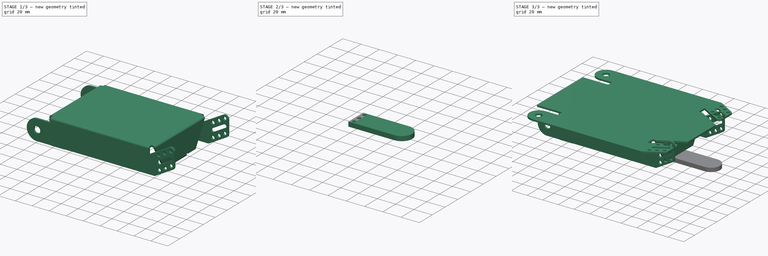
[diagram: build sequence overview — one tinted view per stage of 3, left to right]
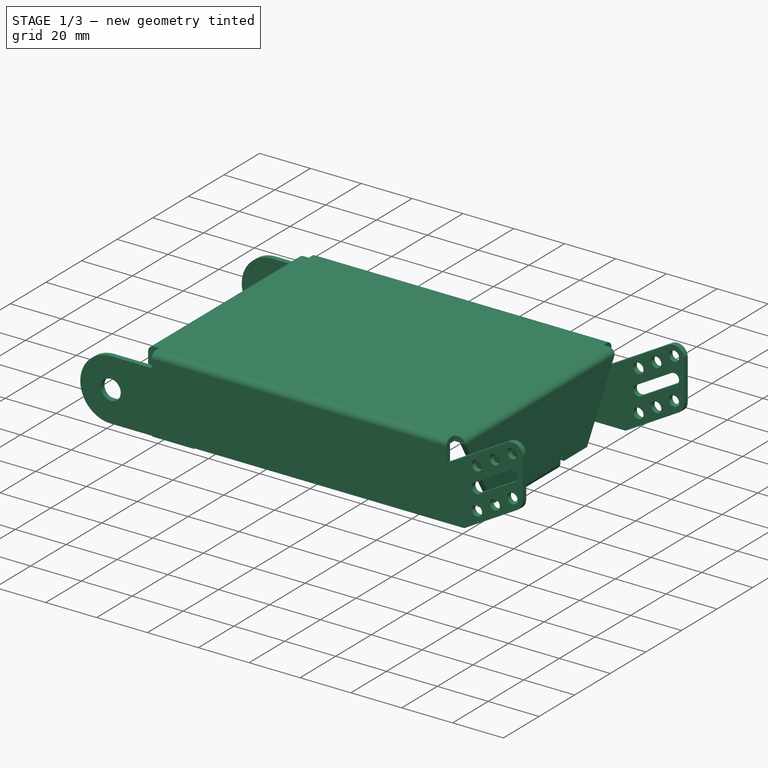
[diagram: stage 1 of 3 — iso view after this stage's code; geometry added in this stage tinted green]
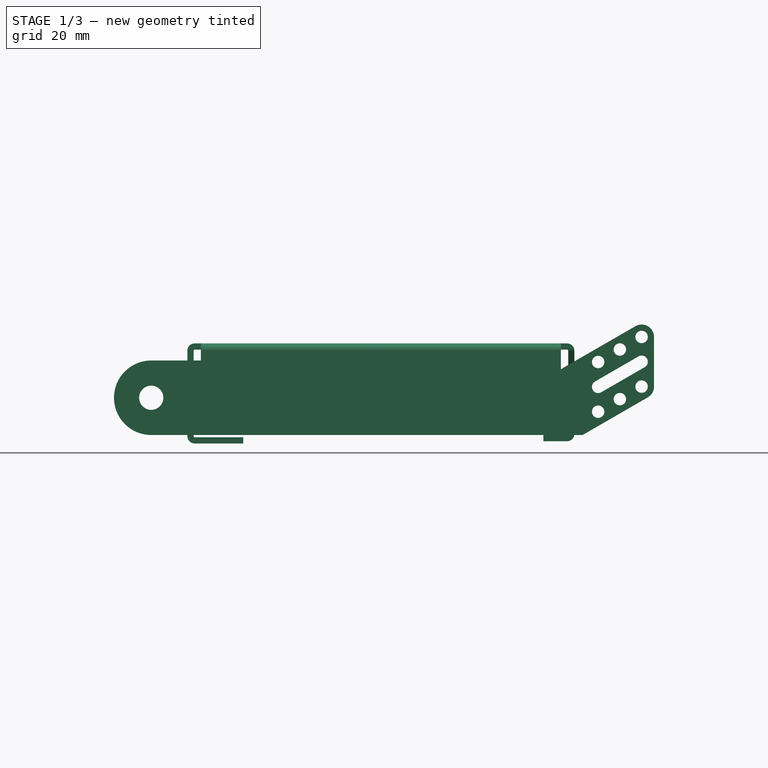
[diagram: stage 1 of 3 — front view after this stage's code; geometry added in this stage tinted green]
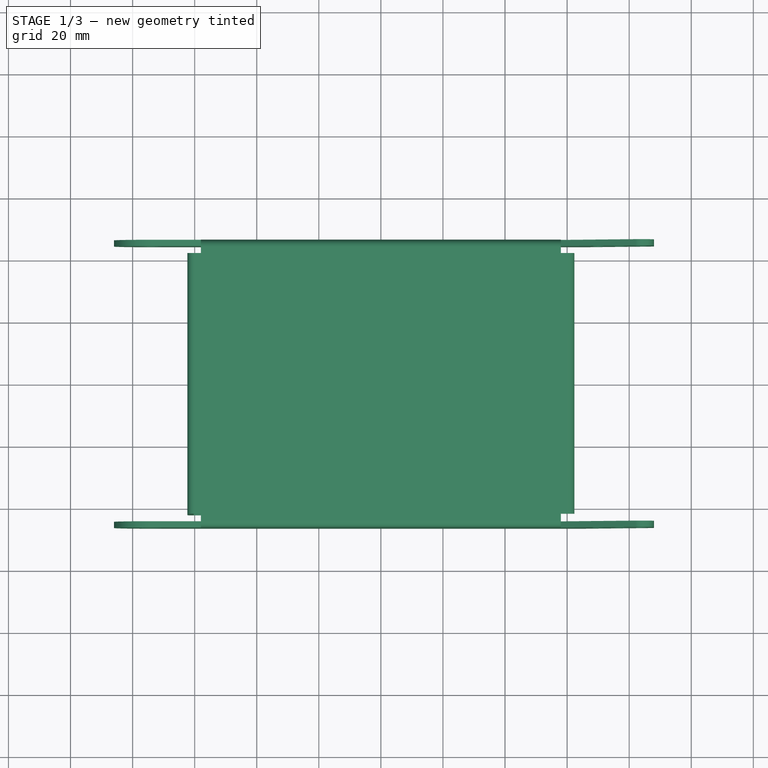
[diagram: stage 1 of 3 — top view after this stage's code; geometry added in this stage tinted green]
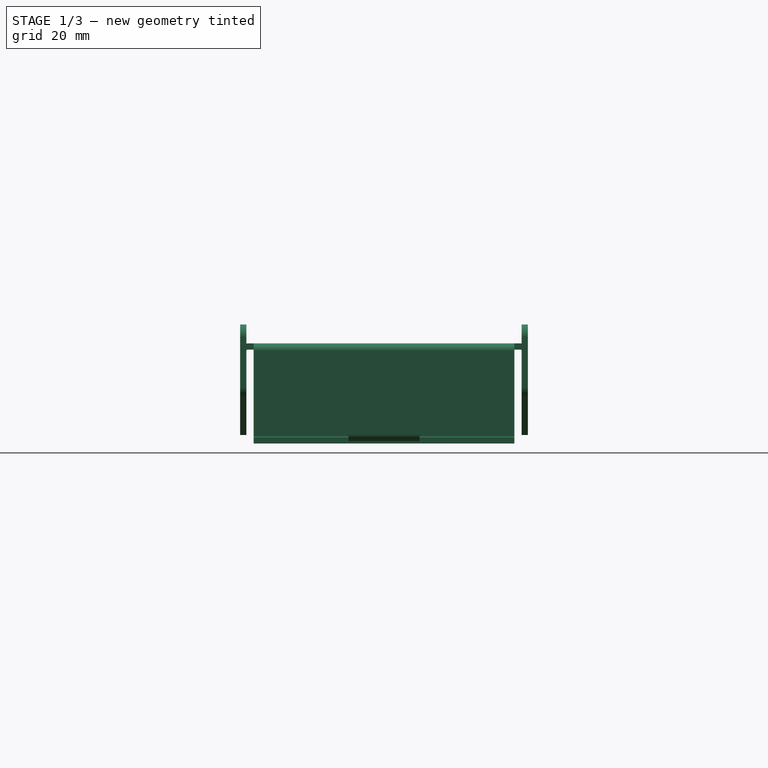
[diagram: stage 1 of 3 — right view after this stage's code; geometry added in this stage tinted green]
FCSTD DOCUMENT  (FreeCAD 0.21R33771 (Git))
Label: chasis_mBot-2_gael
License: Creative Commons Attribution-NonCommercial-ShareAlike 4.0
LicenseURL: https://creativecommons.org/licenses/by-nc-sa/4.0/
objects: Sketcher::SketchObject×10, PartDesign::FeaturePython×6, PartDesign::Pad×3, PartDesign::Body×2, PartDesign::Pocket×1, PartDesign::Plane×1
note: 27 computed .brp shape members not serialized (recipe doc carries the construction recipe); baked Part::Feature solids carry a one-line shape summary decoded from their .brp

FEATURE [Sketcher::SketchObject] Sketch003  label="Sketch-bend-left-side"
  ExternalGeometry = -> [Fold001]
  FullyConstrained = false
  MapMode = 5
  Support = -> [XY_Plane]
  sketch-geometry (1):
    g0: LineSegment StartX=-58.7819 StartY=44 StartZ=0 EndX=59.026 EndY=44 EndZ=0
  constraints (2):
    c: Horizontal(g0)
    c: DistanceY(g0,g-3) = 2
FEATURE [PartDesign::FeaturePython] Fold002  label="Unnamed003"  # WARN: FeaturePython — macro-defined, semantics opaque (R4)
FEATURE [Sketcher::SketchObject] Sketch004  label="Unnamed004"
  FullyConstrained = true
FEATURE [PartDesign::FeaturePython] Fold003  label="Fold-left-side"  # WARN: FeaturePython — macro-defined, semantics opaque (R4)
  BaseFeature = -> Fold002
  BendLine = -> Sketch004
  Position = 0
  angle = 90
  baseObject = -> Fold002 [Face2]
  invert = false
  invertbend = false
  kfactor = 0.5
  radius = 0.35
  unfold = false
FEATURE [PartDesign::FeaturePython] Bend  label="Bend-line-sensors-support"  # WARN: FeaturePython — macro-defined, semantics opaque (R4)
  AutoMiter = true
  BaseFeature = -> Fold003
  BendType = 2
  LengthList = [15.65]
  LengthSpec = 0
  ReliefFactor = 0.7
  UseReliefFactor = false
  angle = -90
  baseObject = -> Fold003 [Face79]
  bendAList = [-90]
  extend1 = 0
  extend2 = 0
  gap1 = 0
  gap2 = 0
  invert = false
  kfactor = 0.5
  length = 15.65
  maxExtendDist = 5
  minGap = 0.2
  minReliefGap = 1
  miterangle1 = 0
  miterangle2 = 0
  offset = 0
  radius = 0.35
  reliefType = 0
  reliefd = 1
  reliefw = 0.8
  sketchflip = false
  sketchinvert = false
  unfold = false
FEATURE [PartDesign::FeaturePython] Bend001  label="Bend-tail-bottom-support"  # WARN: FeaturePython — macro-defined, semantics opaque (R4)
  AutoMiter = true
  BaseFeature = -> Bend
  BendType = 1
  LengthList = [7.65]
  LengthSpec = 0
  ReliefFactor = 0.7
  UseReliefFactor = false
  angle = -90
  baseObject = -> Bend [Face93]
  bendAList = [-90]
  extend1 = 0
  extend2 = 0
  gap1 = 15
  gap2 = 15
  invert = false
  kfactor = 0.5
  length = 7.65
  maxExtendDist = 5
  minGap = 0.2
  minReliefGap = 1
  miterangle1 = 0
  miterangle2 = 0
  offset = 0
  radius = 0.35
  reliefType = 1
  reliefd = 2.5
  reliefw = 2
  sketchflip = false
  sketchinvert = false
  unfold = false
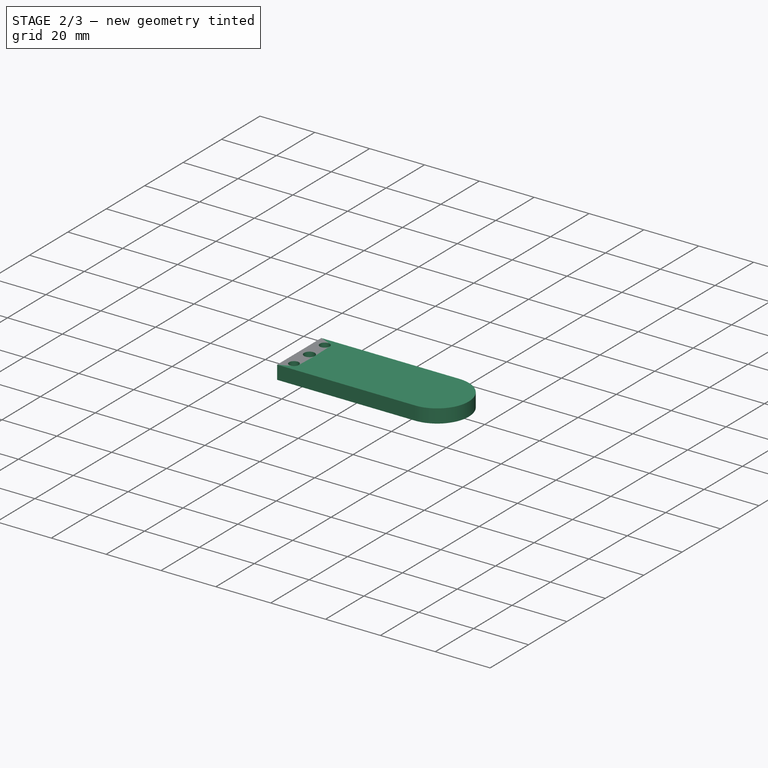
[diagram: stage 2 of 3 — iso view after this stage's code; geometry added in this stage tinted green]
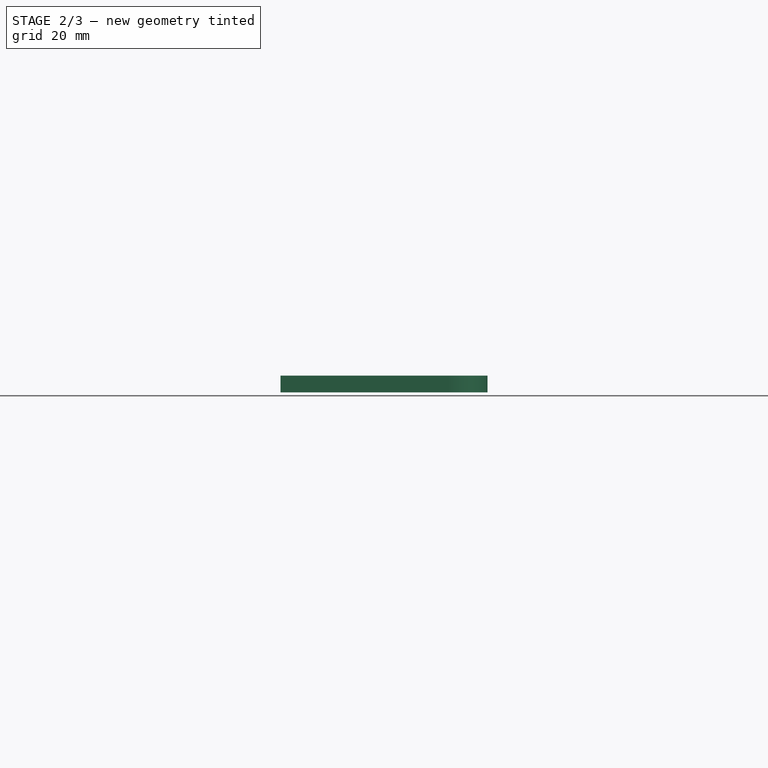
[diagram: stage 2 of 3 — front view after this stage's code; geometry added in this stage tinted green]
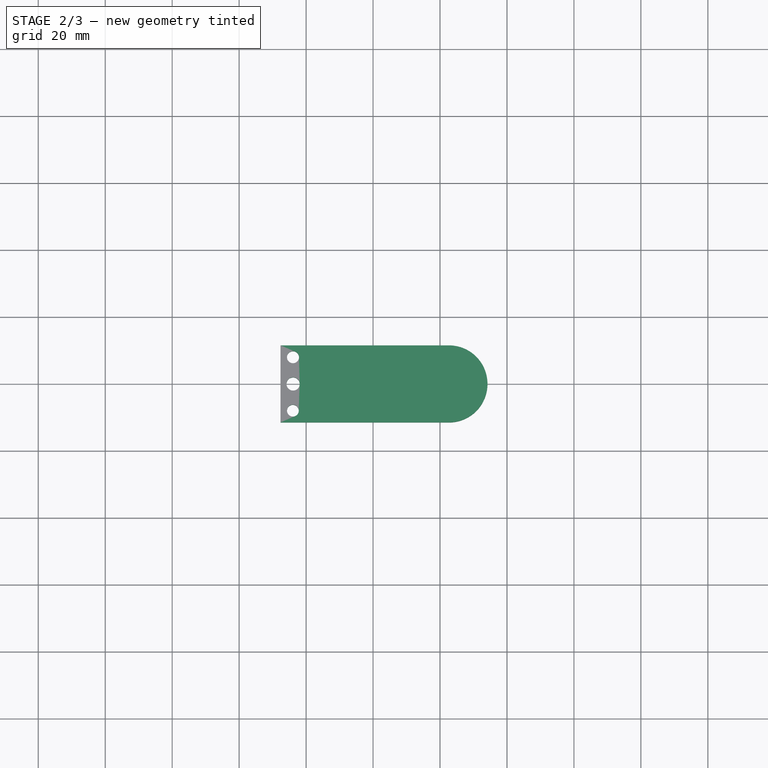
[diagram: stage 2 of 3 — top view after this stage's code; geometry added in this stage tinted green]
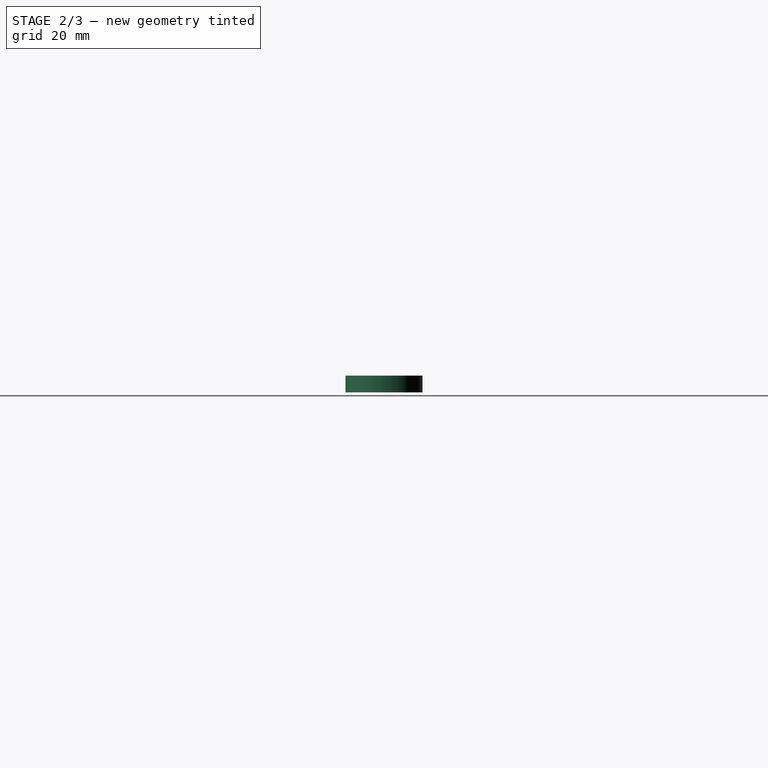
[diagram: stage 2 of 3 — right view after this stage's code; geometry added in this stage tinted green]
FEATURE [Sketcher::SketchObject] Sketch009  label="Unnamed008"
  FullyConstrained = true
FEATURE [PartDesign::Pocket] Pocket  label="Pocket-bottom-screw-holes"
  AllowMultiFace = false
  BaseFeature = -> Bend001
  Direction = (1,1,1)
  Length = 5
  Length2 = 5
  Profile = -> Sketch009
  Type = 0
FEATURE [PartDesign::Body] Body
  Group = -> [Sketch,Pad,Sketch001,Fold,Sketch002,Fold001,Sketch003,Fold002,Sketch004,Fold003,Bend,Bend001,Sketch009,Pocket,Sketch010,Sketch011,Pad001]
  Origin = -> Origin
  Tip = -> Pad001
FEATURE [PartDesign::Plane] DatumPlane
  Length = 155.858
  MapMode = 5
  Placement = pos=(0,0,-29.5044) rot=(1,0,0;3.14159rad)
  ResizeMode = 0
  Support = -> [Pocket]
  Width = 66.6838
FEATURE [Sketcher::SketchObject] Sketch012
  FullyConstrained = false
  MapMode = 5
  Placement = pos=(0,0,-29.5044) rot=(1,0,0;3.14159rad)
  Support = -> [DatumPlane]
  sketch-geometry (7):
    g0: LineSegment StartX=52.3573 StartY=11.4679 StartZ=0 EndX=102.675 EndY=11.4679 EndZ=0
    g1: LineSegment StartX=102.675 StartY=-11.5321 StartZ=0 EndX=52.3573 EndY=-11.5321 EndZ=0
    g2: LineSegment StartX=52.3573 StartY=-11.5321 StartZ=0 EndX=52.3573 EndY=11.4679 EndZ=0
    g3: ArcOfCircle CenterX=102.675 CenterY=-0.032081 CenterZ=0 NormalX=0 NormalY=0 NormalZ=1 AngleXU=0 Radius=11.5 StartAngle=4.71239 EndAngle=7.85398
    g4: Circle CenterX=56.0549 CenterY=7.96632 CenterZ=0 NormalX=0 NormalY=0 NormalZ=1 AngleXU=0 Radius=1.75972
    g5: Circle CenterX=56.1118 CenterY=0 CenterZ=0 NormalX=0 NormalY=0 NormalZ=1 AngleXU=0 Radius=1.9716
    g6: Circle CenterX=56.0833 CenterY=-8.00155 CenterZ=0 NormalX=0 NormalY=0 NormalZ=1 AngleXU=0 Radius=1.7972
  constraints (9):
    c: Coincident(g1,g2)
    c: Coincident(g2,g0)
    c: DistanceY(g2,g2) = 23
    c: Coincident(g1,g3)
    c: Coincident(g3,g0)
    c: Horizontal(g0)
    c: Horizontal(g1)
    c: Radius(g3) = 11.5
    c: PointOnObject(g5,g-1)
FEATURE [PartDesign::Pad] Pad002
  AllowMultiFace = false
  Direction = (0,0,-1)
  Length = 5
  Length2 = 100
  Placement = pos=(0,0,-29.5044) rot=(1,0,0;3.14159rad)
  Profile = -> Sketch012
  Type = 0
FEATURE [PartDesign::Body] Body001
  Group = -> [DatumPlane,Sketch012,Pad002]
  Origin = -> Origin001
  Tip = -> Pad002
FEATURE [Sketcher::SketchObject] Sketch013  label="Sketch-space-limit"
  ExternalGeometry = -> [Pocket]
  FullyConstrained = false
  MapMode = 5
  Placement = pos=(0,0,0) rot=(1,0,0;1.5708rad)
  Support = -> [XZ_Plane]
  sketch-geometry (4):
    g0: LineSegment StartX=114 StartY=15.8437 StartZ=0 EndX=52.35 EndY=15.8437 EndZ=0
    g1: LineSegment StartX=52.35 StartY=15.8437 StartZ=0 EndX=52.35 EndY=-34.3737 EndZ=0
    g2: LineSegment StartX=52.35 StartY=-34.3737 StartZ=0 EndX=114 EndY=-34.3737 EndZ=0
    g3: LineSegment StartX=114 StartY=-34.3737 StartZ=0 EndX=114 EndY=15.8437 EndZ=0
  constraints (10):
    c: Coincident(g0,g1)
    c: Coincident(g1,g2)
    c: Coincident(g2,g3)
    c: Coincident(g3,g0)
    c: Horizontal(g0)
    c: Horizontal(g2)
    c: Vertical(g1)
    c: Vertical(g3)
    c: DistanceX(g-3,g0) = 26
    c: PointOnObject(g-4,g1)
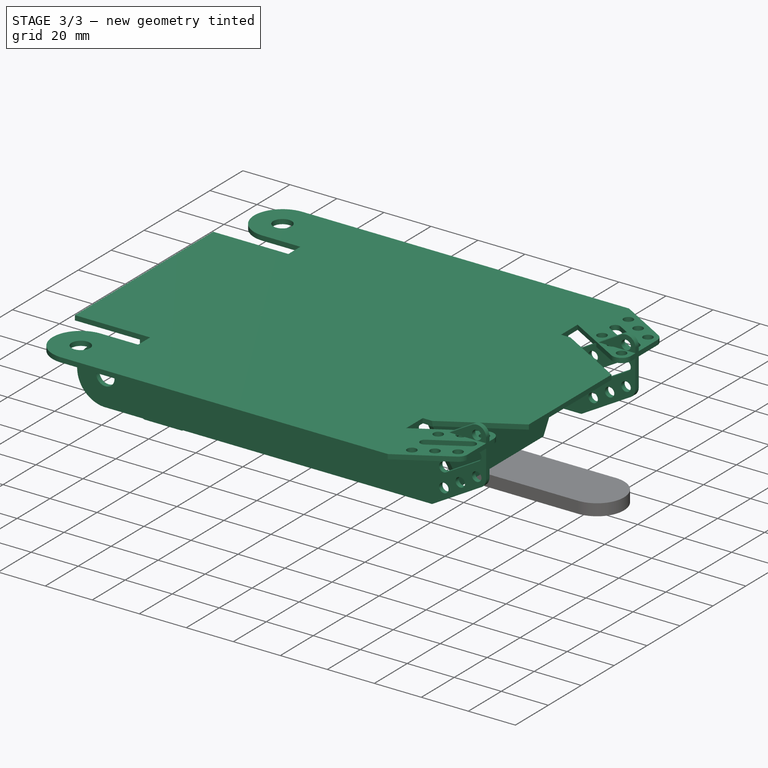
[diagram: stage 3 of 3 — iso view after this stage's code; geometry added in this stage tinted green]
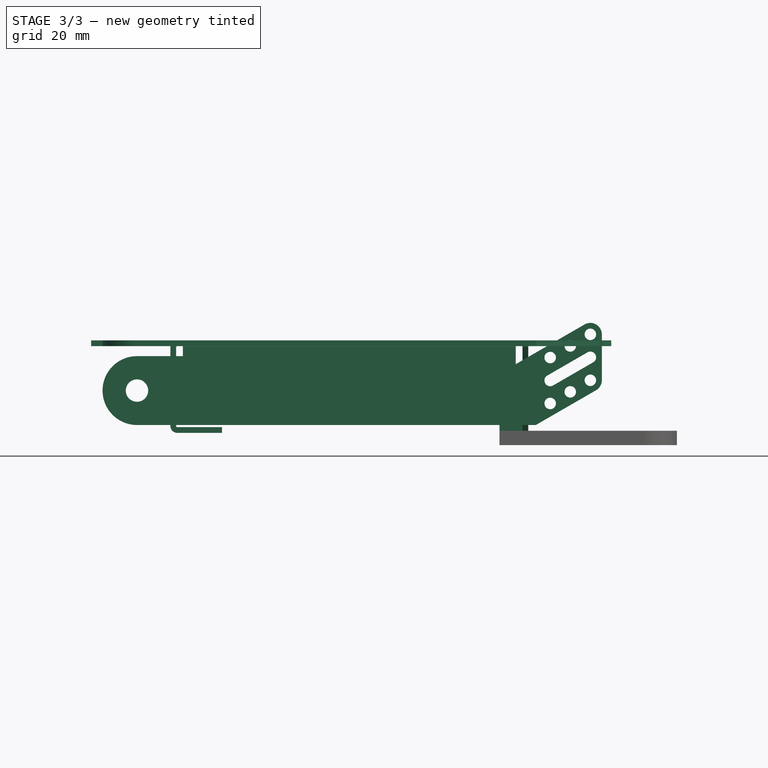
[diagram: stage 3 of 3 — front view after this stage's code; geometry added in this stage tinted green]
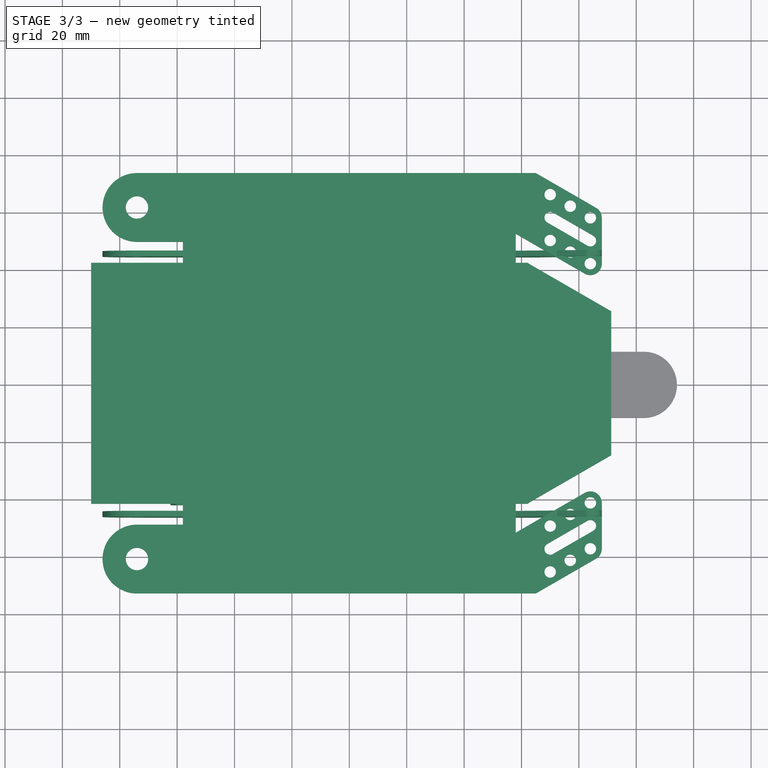
[diagram: stage 3 of 3 — top view after this stage's code; geometry added in this stage tinted green]
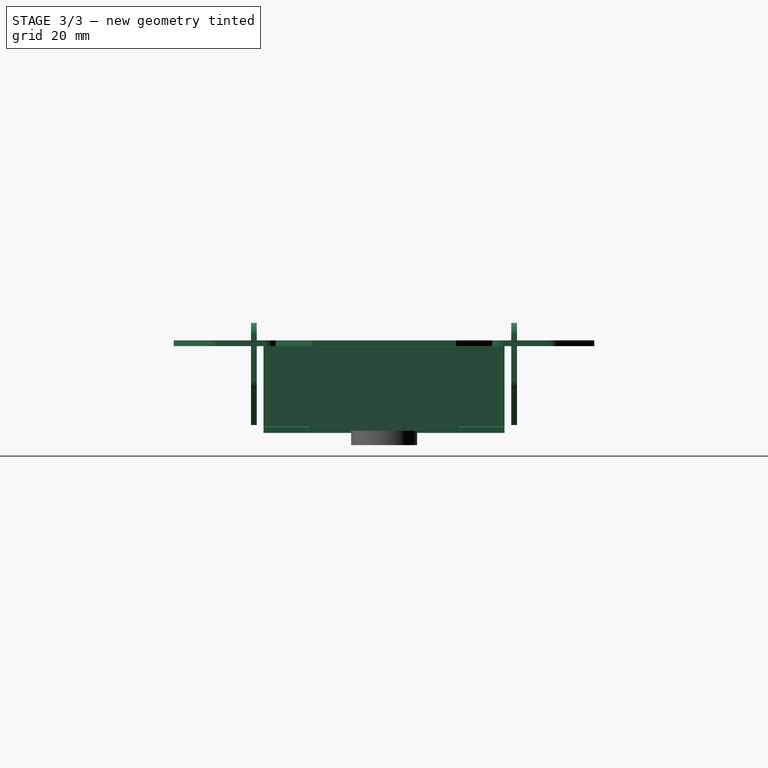
[diagram: stage 3 of 3 — right view after this stage's code; geometry added in this stage tinted green]
FEATURE [Sketcher::SketchObject] Sketch  label="Sketch-chasis-base"
  FullyConstrained = false
  MapMode = 5
  Support = -> [XY_Plane]
  constraints (190):
    c: Coincident(g0,g1)
    c: Coincident(g1,g2)
    c: Coincident(g2,g3)
    c: Coincident(g3,g0)
    c: Horizontal(g0)
    c: Horizontal(g2)
    c: Vertical(g1)
    c: Vertical(g3)
    c: Symmetric(g0,g1,g-1)
    c: DistanceY(g3,g3) = 84
    c: DistanceX(g0,g0) = 116
    c: Coincident(g1,g4)
    c: Horizontal(g4)
    c: Coincident(g4,g5)
    c: Coincident(g5,g6)
    c: Coincident(g6,g7)
    c: Coincident(g7,g8)
    c: Coincident(g8,g0)
    c: Horizontal(g8)
    c: Coincident(g9,g10)
    c: Horizontal(g10)
    c: Tangent(g10,g11) = -1.5708
    c: Tangent(g11,g12) = -1.5708
    c: Coincident(g12,g13)
    c: Coincident(g13,g0)
    c: Vertical(g13)
    c: Horizontal(g12)
    c: Angle(g1,g7) = 1.0472
    c: Angle(g5,g1) = 1.0472
    c: Symmetric(g6,g5,g-1)
    c: Coincident(g9,g8)
    c: Vertical(g9)
    c: Coincident(g13,g14)
    c: Horizontal(g14)
    c: Coincident(g14,g15)
    c: Vertical(g15)
    c: Coincident(g15,g16)
    c: Coincident(g16,g2)
    c: Horizontal(g16)
    c: Horizontal(g17)
    c: Tangent(g17,g18) = 1.5708
    c: Tangent(g18,g19) = 1.5708
    c: Horizontal(g19)
    c: Coincident(g20,g19)
    c: Coincident(g20,g16)
    c: Vertical(g20)
    c: Coincident(g21,g17)
    c: Coincident(g21,g4)
    c: Vertical(g21)
    c: DistanceX(g8,g8) = 4
    c: Equal(g18,g11)
    c: Equal(g13,g20)
    c: DistanceY(g13,g13) = 7.27
    c: DistanceX(g16,g16) = 32
    c: Radius(g18) = 12
    c: DistanceX(g19,g19) = 16
    c: Coincident(g22,g18)
    c: Radius(g22) = 3.9
    c: Equal(g12,g19)
    c: Coincident(g23,g11)
    c: Equal(g23,g22)
    c: DistanceX(g4,g5) = 33.275
    c: Coincident(g4,g24)
    c: PointOnObject(g24,g21)
    c: Coincident(g24,g25)
    c: Vertical(g26)
    c: Coincident(g27,g28)
    c: Coincident(g28,g17)
    c: Horizontal(g28)
    c: Tangent(g25,g29) = 1.5708
    c: Tangent(g26,g29) = 1.5708
    c: Tangent(g26,g30) = 1.5708
    c: Tangent(g27,g30) = 1.5708
    c: Parallel(g25,g27)
    c: Parallel(g27,g5)
    c: Equal(g29,g30)
    c: Radius(g29) = 4
    c: DistanceX(g17,g26) = 30
    c: DistanceX(g28,g28) = 7
    c: Coincident(g31,g29)
    c: Coincident(g32,g30)
    c: Parallel(g32,g31)
    c: Parallel(g31,g25)
    c: Coincident(g33,g29)
    c: Coincident(g34,g30)
    c: PointOnObject(g36,g32)
    c: PointOnObject(g37,g31)
    c: Coincident(g38,g31)
    c: Tangent(g39,g41) = -1.5708
    c: Tangent(g41,g40) = -1.5708
    c: Tangent(g40,g42) = -1.5708
    c: Tangent(g42,g39) = -1.5708
    c: Equal(g39,g40)
    c: Equal(g38,g40)
    c: Equal(g40,g35)
    c: Equal(g35,g36)
    c: Equal(g36,g34)
    c: Equal(g34,g37)
    c: Equal(g37,g33)
    c: Radius(g38) = 2
    c: Coincident(g43,g29)
    c: Coincident(g43,g39)
    c: Coincident(g44,g39)
    c: Coincident(g44,g30)
    c: Vertical(g43)
    c: Coincident(g45,g38)
    c: Coincident(g45,g40)
    c: Vertical(g45)
    c: Coincident(g46,g40)
    c: Coincident(g46,g35)
    c: Vertical(g46)
    c: Equal(g45,g43)
    c: Equal(g43,g44)
    c: Coincident(g32,g35)
    c: DistanceY(g35,g38) = 16
    c: DistanceX(g35,g30) = 14
    c: Coincident(g47,g37)
    c: Coincident(g47,g36)
    c: Vertical(g47)
    c: Coincident(g48,g38)
    c: PointOnObject(g48,g47)
    c: Horizontal(g48)
    c: Coincident(g49,g37)
    c: PointOnObject(g49,g43)
    c: Horizontal(g49)
    c: Equal(g48,g49)
    c: Coincident(g50,g51)
    c: Vertical(g52)
    c: Coincident(g53,g54)
    c: Horizontal(g54)
    c: Tangent(g51,g55) = -1.5708
    c: Tangent(g52,g55) = -1.5708
    c: Tangent(g52,g56) = -1.5708
    c: Tangent(g53,g56) = -1.5708
    c: Parallel(g51,g53)
    c: Equal(g55,g56)
    c: Radius(g55) = 4
    c: Coincident(g57,g55)
    c: Coincident(g58,g56)
    c: Parallel(g58,g57)
    c: Parallel(g57,g51)
    c: Coincident(g59,g55)
    c: Coincident(g60,g56)
    c: PointOnObject(g62,g58)
    c: PointOnObject(g63,g57)
    c: Coincident(g64,g57)
    c: Tangent(g65,g67) = 1.5708
    c: Tangent(g67,g66) = 1.5708
    c: Tangent(g66,g68) = 1.5708
    c: Tangent(g68,g65) = 1.5708
    c: Equal(g65,g66)
    c: Equal(g64,g66)
    c: Equal(g66,g61)
    c: Equal(g61,g62)
    c: Equal(g62,g60)
    c: Equal(g60,g63)
    c: Equal(g63,g59)
    c: Radius(g64) = 2
    c: Coincident(g69,g55)
    c: Coincident(g69,g65)
    c: Coincident(g70,g65)
    c: Coincident(g70,g56)
    c: Vertical(g69)
    c: Coincident(g71,g64)
    c: Coincident(g71,g66)
    c: Vertical(g71)
    c: Coincident(g72,g66)
    c: Coincident(g72,g61)
    c: Vertical(g72)
    c: Equal(g71,g69)
    c: Equal(g69,g70)
    c: Coincident(g58,g61)
    c: Coincident(g73,g63)
    c: Coincident(g73,g62)
    c: Vertical(g73)
    c: Coincident(g74,g64)
    c: PointOnObject(g74,g73)
    c: Horizontal(g74)
    c: Coincident(g75,g63)
    c: PointOnObject(g75,g69)
    c: Horizontal(g75)
    c: Equal(g74,g75)
    c: Coincident(g50,g8)
    c: Vertical(g50)
    c: Parallel(g51,g7)
    c: Coincident(g54,g10)
    c: DistanceX(g54,g54) = 7
    c: DistanceX(g61,g56) = 14
    c: DistanceY(g64,g61) = 16
    c: DistanceX(g10,g52) = 30
FEATURE [PartDesign::Pad] Pad  label="Pad-chasis-base"
  AllowMultiFace = false
  Direction = (1,1,1)
  Length = 2
  Length2 = 10
  Profile = -> Sketch
  Type = 0
FEATURE [Sketcher::SketchObject] Sketch001  label="Sketch-bend-head"
  ExternalGeometry = -> [Pad]
  FullyConstrained = false
  MapMode = 5
  Support = -> [XY_Plane]
  sketch-geometry (1):
    g0: LineSegment StartX=-60 StartY=43.0425 StartZ=0 EndX=-60 EndY=-44.0534 EndZ=0
  constraints (2):
    c: Vertical(g0)
    c: DistanceX(g-3,g0) = 2
FEATURE [PartDesign::FeaturePython] Fold  label="Unnamed001"  # WARN: FeaturePython — macro-defined, semantics opaque (R4)
FEATURE [Sketcher::SketchObject] Sketch002  label="Unnamed002"
  FullyConstrained = true
FEATURE [PartDesign::FeaturePython] Fold001  label="Fold-head"  # WARN: FeaturePython — macro-defined, semantics opaque (R4)
  BaseFeature = -> Fold
  BendLine = -> Sketch002
  Position = 0
  angle = 90
  baseObject = -> Fold [Face2]
  invert = false
  invertbend = false
  kfactor = 0.5
  radius = 0.35
  unfold = false
FEATURE [Sketcher::SketchObject] Sketch010  label="Unnamed009"
  ExternalGeometry = -> [Pocket]
  FullyConstrained = true
  constraints (10):
    c: Coincident(g0,g1)
    c: Coincident(g1,g2)
    c: Coincident(g2,g3)
    c: Coincident(g3,g0)
    c: Horizontal(g0)
    c: Horizontal(g2)
    c: Vertical(g1)
    c: Vertical(g3)
    c: DistanceX(g-3,g0) = 26
    c: PointOnObject(g-4,g1)
FEATURE [Sketcher::SketchObject] Sketch011  label="PIEZA"
  FullyConstrained = false
  MapMode = 5
  Placement = pos=(0,0,-29.5044) rot=(1,0,0;3.14159rad)
  Support = -> [Pocket]
  sketch-geometry (7):
    g0: LineSegment StartX=52.4817 StartY=11.345 StartZ=0 EndX=93.5556 EndY=11.345 EndZ=0
    g1: LineSegment StartX=93.5556 StartY=-11.345 StartZ=0 EndX=52.4817 EndY=-11.345 EndZ=0
    g2: LineSegment StartX=52.4817 StartY=-11.345 StartZ=0 EndX=52.4817 EndY=11.345 EndZ=0
    g3: ArcOfCircle CenterX=93.5556 CenterY=-4e-16 CenterZ=0 NormalX=0 NormalY=0 NormalZ=1 AngleXU=0 Radius=11.345 StartAngle=4.71239 EndAngle=7.85398
    g4: Circle CenterX=56.0897 CenterY=0 CenterZ=0 NormalX=0 NormalY=0 NormalZ=1 AngleXU=0 Radius=2
    g5: Circle CenterX=56.0744 CenterY=7.99048 CenterZ=0 NormalX=0 NormalY=0 NormalZ=1 AngleXU=0 Radius=1.8
    g6: Circle CenterX=56.194 CenterY=-8.1165 CenterZ=0 NormalX=0 NormalY=0 NormalZ=1 AngleXU=0 Radius=1.8
  constraints (11):
    c: Coincident(g1,g2)
    c: Coincident(g2,g0)
    c: Horizontal(g0)
    c: Horizontal(g1)
    c: DistanceY(g2,g2) = 22.69
    c: Symmetric(g0,g1,g-1)
    c: Coincident(g3,g0)
    c: PointOnObject(g4,g-1)
    c: Radius(g5) = 1.8
    c: Radius(g4) = 2
    c: Radius(g6) = 1.8
FEATURE [PartDesign::Pad] Pad001  label="PIEZAv1"
  AllowMultiFace = false
  BaseFeature = -> Pocket
  Direction = (1,1,1)
  Length = 5
  Length2 = 100
  Profile = -> Sketch011
  Type = 0
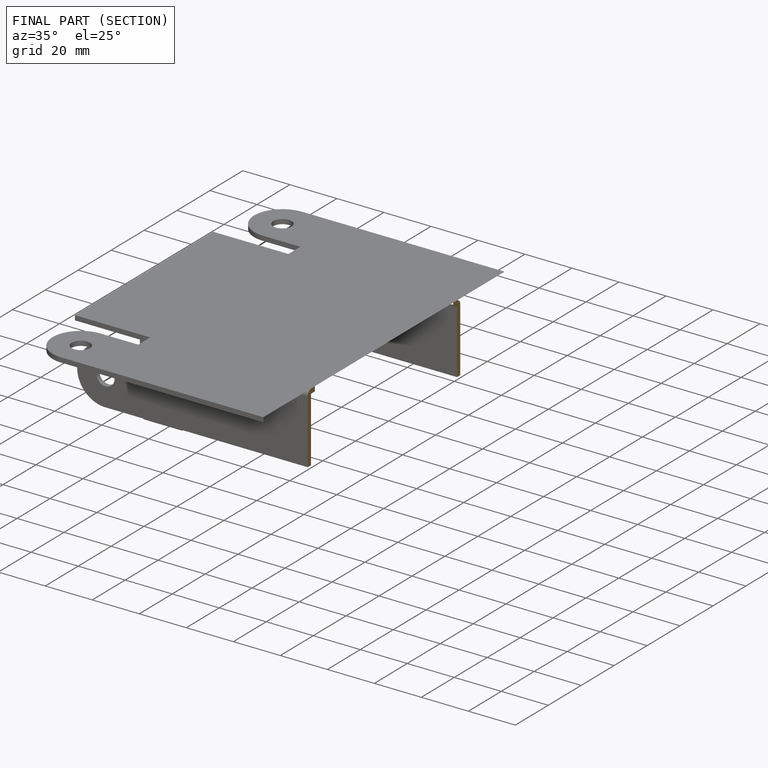
[diagram: finished part — half-section view (interior)]
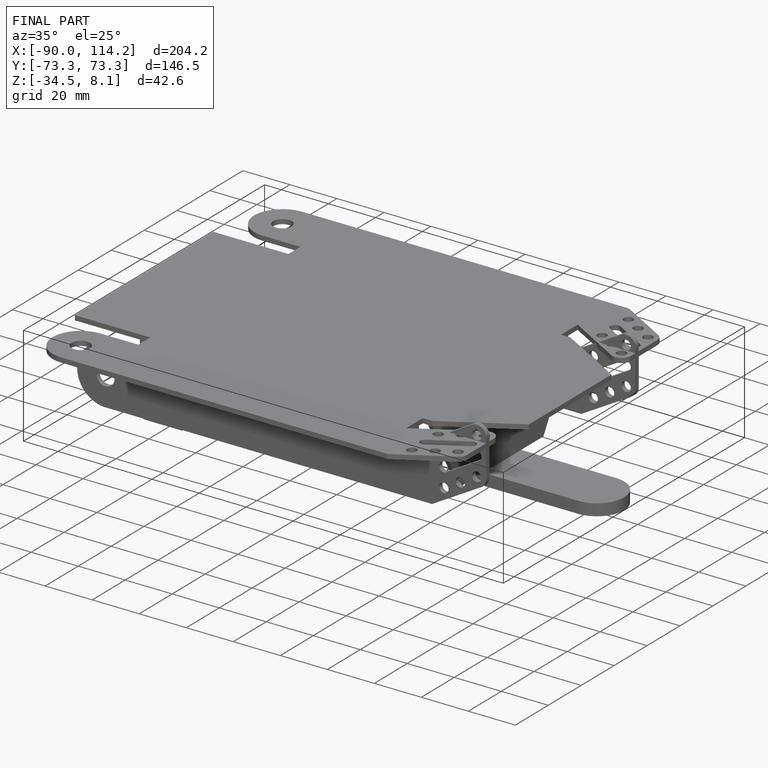
[diagram: finished part — iso view with bounding-box wireframe]
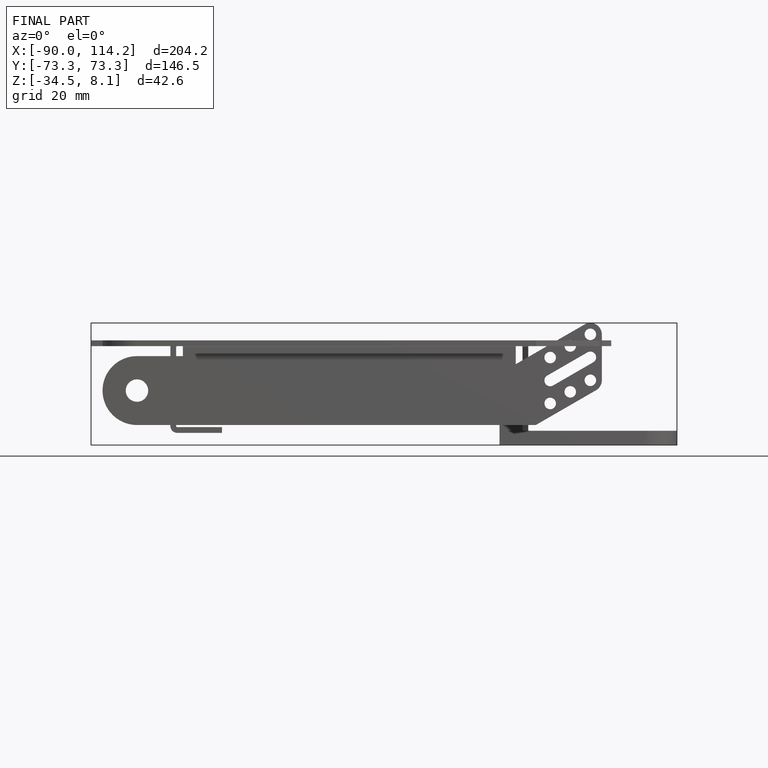
[diagram: finished part — front view with bounding-box wireframe]
